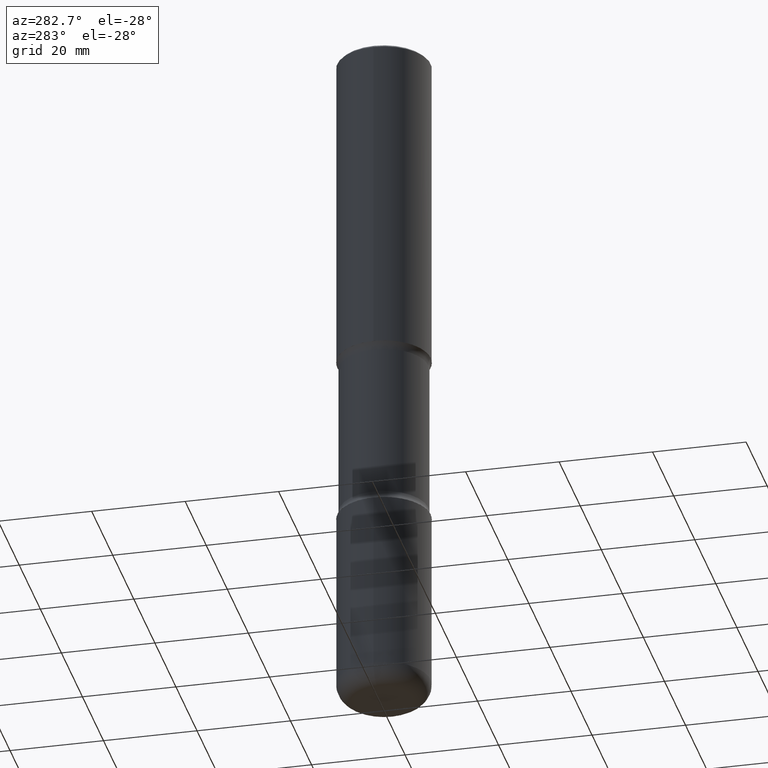
[diagram: clean part render]
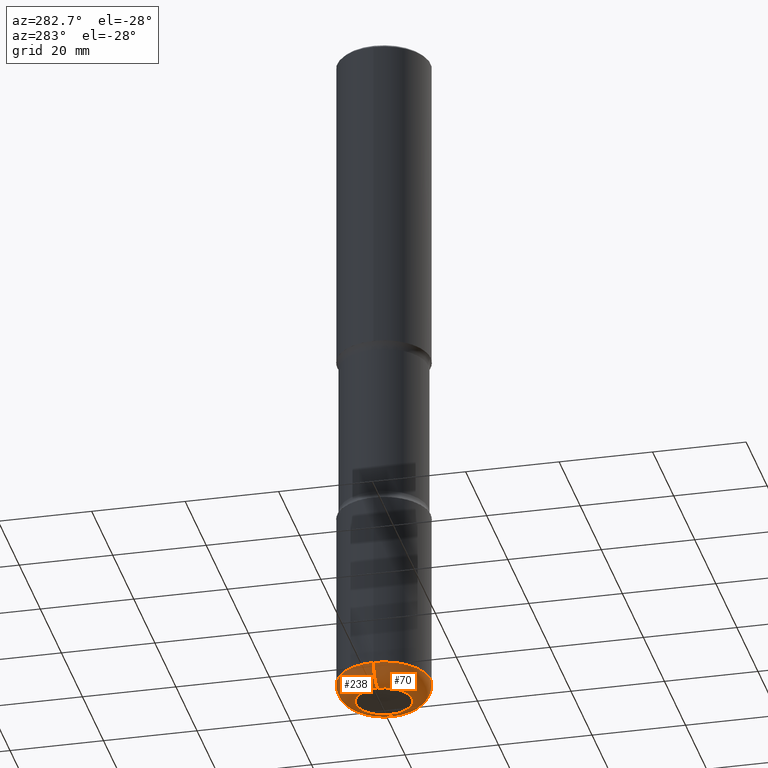
[diagram: same view with one multi-face feature highlighted, each face labeled with its STEP entity id]
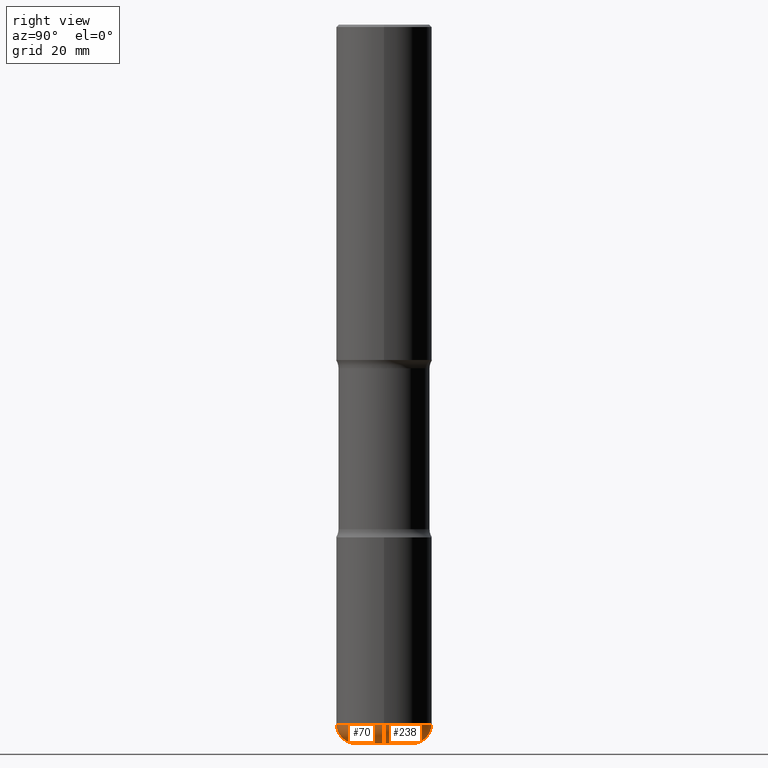
[diagram: same view with one multi-face feature highlighted, each face labeled with its STEP entity id]
A machine part, auxiliary view. The highlighted faces form ONE feature: a constant-radius fillet chain: 2 tangent blend faces with common blend radius 4.0005 mm. The faces share edges in the B-rep.
A second angle (right view) of the same feature is appended — it is thin or edge-on in the first view.
Their STEP definitions:
[1] entity #70 (Torus):
#10 = DIRECTION ( 'NONE',  ( 1.000000000000000000, -6.982962677686269866E-15, 0.000000000000000000 ) ) ;
#41 = ORIENTED_EDGE ( 'NONE', *, *, #130, .F. ) ;
#49 = ORIENTED_EDGE ( 'NONE', *, *, #284, .T. ) ;
#52 = CARTESIAN_POINT ( 'NONE',  ( -0.2362000000000005762, -1.810613454482786010E-14, -5.905499999999999972 ) ) ;
#70 = ADVANCED_FACE ( 'NONE', ( #487 ), #534, .T. ) ;
#74 = DIRECTION ( 'NONE',  ( 7.105427357601001859E-15, 1.000000000000000000, -3.491481338843145583E-15 ) ) ;
#108 = CARTESIAN_POINT ( 'NONE',  ( 1.405655469795216423E-28, -2.006903473567040335E-14, -5.748000000000000220 ) ) ;
#130 = EDGE_CURVE ( 'NONE', #320, #560, #201, .T. ) ;
#134 = CARTESIAN_POINT ( 'NONE',  ( -0.3937000000000004385, -1.727162798498288305E-14, -5.748000000000000220 ) ) ;
#174 = DIRECTION ( 'NONE',  ( -6.982962677686266711E-15, -1.000000000000000000, 3.491481338843145583E-15 ) ) ;
#199 = DIRECTION ( 'NONE',  ( -2.445468806185136597E-29, 3.491481338843145583E-15, 1.000000000000000000 ) ) ;
#201 = CIRCLE ( 'NONE', #545, 0.1574999999999998346 ) ;
#212 = CIRCLE ( 'NONE', #538, 0.1574999999999998346 ) ;
#216 = VERTEX_POINT ( 'NONE', #465 ) ;
#251 = ORIENTED_EDGE ( 'NONE', *, *, #558, .F. ) ;
#260 = VERTEX_POINT ( 'NONE', #549 ) ;
#273 = DIRECTION ( 'NONE',  ( -2.445468806185136597E-29, 3.491481338843145583E-15, 1.000000000000000000 ) ) ;
#282 = CARTESIAN_POINT ( 'NONE',  ( 1.405655469795216423E-28, -2.006903473567040335E-14, -5.748000000000000220 ) ) ;
#284 = EDGE_CURVE ( 'NONE', #320, #216, #321, .T. ) ;
#297 = EDGE_CURVE ( 'NONE', #216, #260, #212, .T. ) ;
#305 = DIRECTION ( 'NONE',  ( 1.000000000000000000, -6.982962677686269866E-15, 0.000000000000000000 ) ) ;
#320 = VERTEX_POINT ( 'NONE', #52 ) ;
#321 = CIRCLE ( 'NONE', #384, 0.2362000000000005762 ) ;
#322 = AXIS2_PLACEMENT_3D ( 'NONE', #282, #273, #10 ) ;
#340 = DIRECTION ( 'NONE',  ( 1.000000000000000000, -6.982962677686272233E-15, 0.000000000000000000 ) ) ;
#371 = CARTESIAN_POINT ( 'NONE',  ( -0.2362000000000005484, -1.839073279380504223E-14, -5.748000000000000220 ) ) ;
#377 = CARTESIAN_POINT ( 'NONE',  ( 1.444171603492632270E-28, -2.061894304653819197E-14, -5.905499999999999972 ) ) ;
#384 = AXIS2_PLACEMENT_3D ( 'NONE', #377, #199, #340 ) ;
#389 = ORIENTED_EDGE ( 'NONE', *, *, #297, .T. ) ;
#421 = CARTESIAN_POINT ( 'NONE',  ( 0.2362000000000005484, -2.171841052013990303E-14, -5.748000000000000220 ) ) ;
#465 = CARTESIAN_POINT ( 'NONE',  ( 0.2362000000000005762, -2.226831883100769480E-14, -5.905499999999999972 ) ) ;
#487 = FACE_OUTER_BOUND ( 'NONE', #553, .T. ) ;
#489 = DIRECTION ( 'NONE',  ( 1.000000000000000000, -6.982962677686272233E-15, 4.883557194083114022E-29 ) ) ;
#534 = TOROIDAL_SURFACE ( 'NONE', #555, 0.2362000000000005484, 0.1574999999999997791 ) ;
#538 = AXIS2_PLACEMENT_3D ( 'NONE', #421, #174, #305 ) ;
#540 = DIRECTION ( 'NONE',  ( -2.445468806185136597E-29, 3.491481338843145583E-15, 1.000000000000000000 ) ) ;
#545 = AXIS2_PLACEMENT_3D ( 'NONE', #371, #74, #546 ) ;
#546 = DIRECTION ( 'NONE',  ( -1.000000000000000000, 7.105427357601005014E-15, 0.000000000000000000 ) ) ;
#549 = CARTESIAN_POINT ( 'NONE',  ( 0.3937000000000004385, -2.281822714187548973E-14, -5.748000000000000220 ) ) ;
#553 = EDGE_LOOP ( 'NONE', ( #41, #49, #389, #251 ) ) ;
#555 = AXIS2_PLACEMENT_3D ( 'NONE', #108, #540, #489 ) ;
#556 = CIRCLE ( 'NONE', #322, 0.3937000000000004940 ) ;
#558 = EDGE_CURVE ( 'NONE', #560, #260, #556, .T. ) ;
#560 = VERTEX_POINT ( 'NONE', #134 ) ;
[2] entity #238 (Torus):
#24 = DIRECTION ( 'NONE',  ( -2.445468806185136597E-29, 3.491481338843145583E-15, 1.000000000000000000 ) ) ;
#52 = CARTESIAN_POINT ( 'NONE',  ( -0.2362000000000005762, -1.810613454482786010E-14, -5.905499999999999972 ) ) ;
#67 = TOROIDAL_SURFACE ( 'NONE', #247, 0.2362000000000005484, 0.1574999999999997791 ) ;
#74 = DIRECTION ( 'NONE',  ( 7.105427357601001859E-15, 1.000000000000000000, -3.491481338843145583E-15 ) ) ;
#115 = CIRCLE ( 'NONE', #440, 0.2362000000000005762 ) ;
#120 = DIRECTION ( 'NONE',  ( -2.445468806185136597E-29, 3.491481338843145583E-15, 1.000000000000000000 ) ) ;
#123 = EDGE_CURVE ( 'NONE', #216, #320, #115, .T. ) ;
#130 = EDGE_CURVE ( 'NONE', #320, #560, #201, .T. ) ;
#134 = CARTESIAN_POINT ( 'NONE',  ( -0.3937000000000004385, -1.727162798498288305E-14, -5.748000000000000220 ) ) ;
#143 = ORIENTED_EDGE ( 'NONE', *, *, #520, .F. ) ;
#154 = ORIENTED_EDGE ( 'NONE', *, *, #130, .T. ) ;
#167 = DIRECTION ( 'NONE',  ( -2.445468806185136597E-29, 3.491481338843145583E-15, 1.000000000000000000 ) ) ;
#174 = DIRECTION ( 'NONE',  ( -6.982962677686266711E-15, -1.000000000000000000, 3.491481338843145583E-15 ) ) ;
#190 = ORIENTED_EDGE ( 'NONE', *, *, #297, .F. ) ;
#191 = DIRECTION ( 'NONE',  ( 1.000000000000000000, -6.982962677686269866E-15, 0.000000000000000000 ) ) ;
#201 = CIRCLE ( 'NONE', #545, 0.1574999999999998346 ) ;
#204 = EDGE_LOOP ( 'NONE', ( #382, #154, #143, #190 ) ) ;
#212 = CIRCLE ( 'NONE', #538, 0.1574999999999998346 ) ;
#216 = VERTEX_POINT ( 'NONE', #465 ) ;
#237 = AXIS2_PLACEMENT_3D ( 'NONE', #405, #24, #191 ) ;
#238 = ADVANCED_FACE ( 'NONE', ( #337 ), #67, .T. ) ;
#247 = AXIS2_PLACEMENT_3D ( 'NONE', #508, #167, #464 ) ;
#260 = VERTEX_POINT ( 'NONE', #549 ) ;
#297 = EDGE_CURVE ( 'NONE', #216, #260, #212, .T. ) ;
#305 = DIRECTION ( 'NONE',  ( 1.000000000000000000, -6.982962677686269866E-15, 0.000000000000000000 ) ) ;
#320 = VERTEX_POINT ( 'NONE', #52 ) ;
#332 = CIRCLE ( 'NONE', #237, 0.3937000000000004940 ) ;
#337 = FACE_OUTER_BOUND ( 'NONE', #204, .T. ) ;
#371 = CARTESIAN_POINT ( 'NONE',  ( -0.2362000000000005484, -1.839073279380504223E-14, -5.748000000000000220 ) ) ;
#382 = ORIENTED_EDGE ( 'NONE', *, *, #123, .T. ) ;
#405 = CARTESIAN_POINT ( 'NONE',  ( 1.405655469795216423E-28, -2.006903473567040335E-14, -5.748000000000000220 ) ) ;
#421 = CARTESIAN_POINT ( 'NONE',  ( 0.2362000000000005484, -2.171841052013990303E-14, -5.748000000000000220 ) ) ;
#440 = AXIS2_PLACEMENT_3D ( 'NONE', #505, #120, #510 ) ;
#464 = DIRECTION ( 'NONE',  ( 1.000000000000000000, -6.982962677686272233E-15, 4.883557194083114022E-29 ) ) ;
#465 = CARTESIAN_POINT ( 'NONE',  ( 0.2362000000000005762, -2.226831883100769480E-14, -5.905499999999999972 ) ) ;
#505 = CARTESIAN_POINT ( 'NONE',  ( 1.444171603492632270E-28, -2.061894304653819197E-14, -5.905499999999999972 ) ) ;
#508 = CARTESIAN_POINT ( 'NONE',  ( 1.405655469795216423E-28, -2.006903473567040335E-14, -5.748000000000000220 ) ) ;
#510 = DIRECTION ( 'NONE',  ( 1.000000000000000000, -6.982962677686272233E-15, 0.000000000000000000 ) ) ;
#520 = EDGE_CURVE ( 'NONE', #260, #560, #332, .T. ) ;
#538 = AXIS2_PLACEMENT_3D ( 'NONE', #421, #174, #305 ) ;
#545 = AXIS2_PLACEMENT_3D ( 'NONE', #371, #74, #546 ) ;
#546 = DIRECTION ( 'NONE',  ( -1.000000000000000000, 7.105427357601005014E-15, 0.000000000000000000 ) ) ;
#549 = CARTESIAN_POINT ( 'NONE',  ( 0.3937000000000004385, -2.281822714187548973E-14, -5.748000000000000220 ) ) ;
#560 = VERTEX_POINT ( 'NONE', #134 ) ;